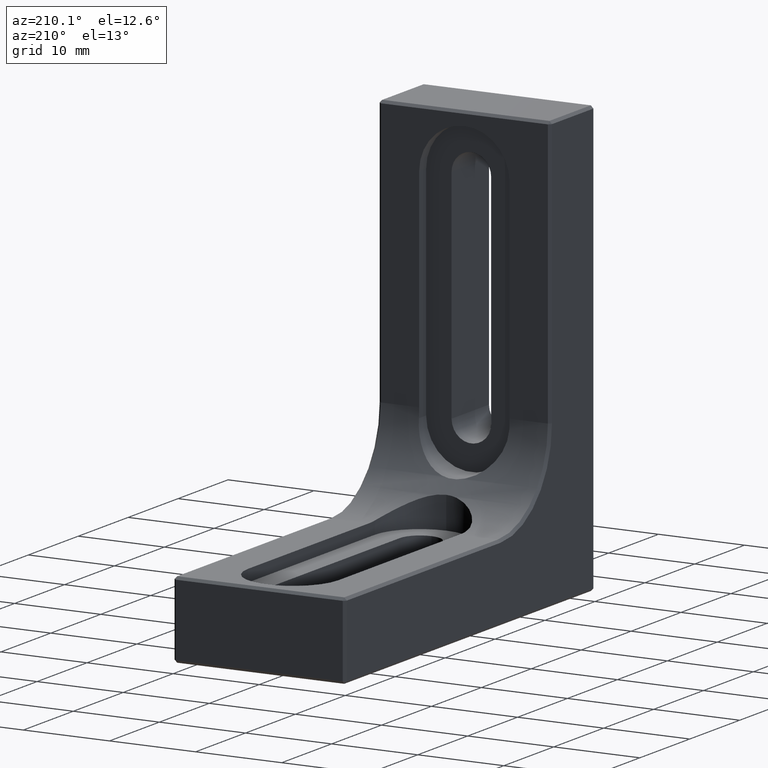
[diagram: clean part render]
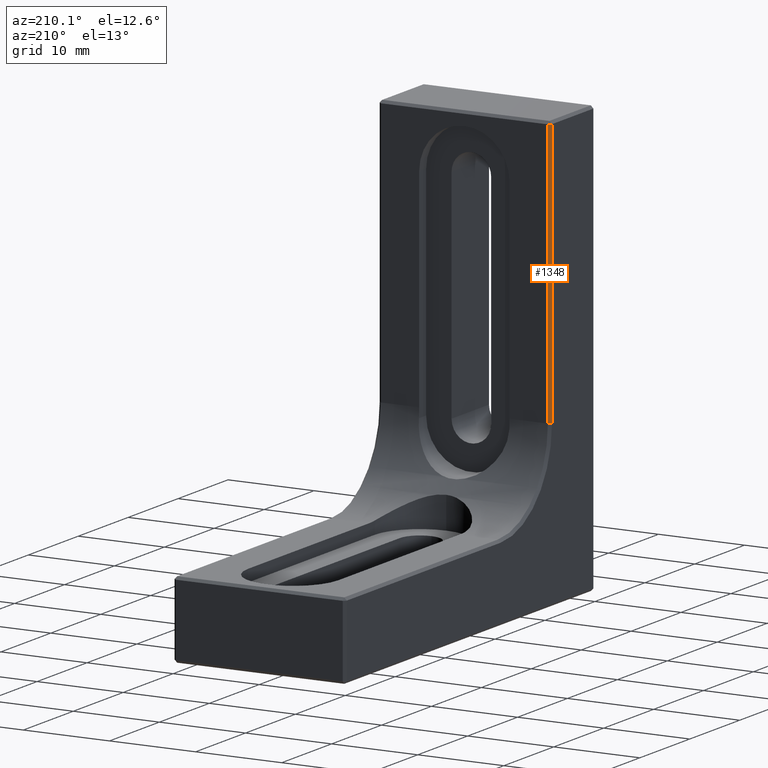
[diagram: same view with one face highlighted and labeled with its STEP entity id]
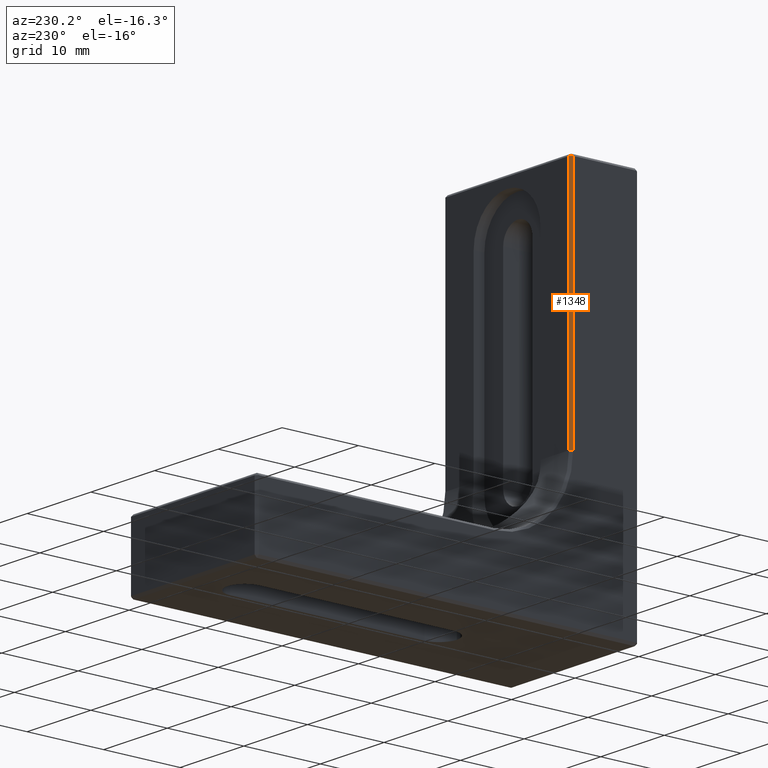
[diagram: same view with one face highlighted and labeled with its STEP entity id]
A machine part, auxiliary view. The second image highlights one B-rep face of the part: STEP entity #1348.
A second angle (auxiliary view) of the same face is appended — the face is thin or edge-on in the first view.
In plain terms, the highlighted planar face has unit normal (0.7071, -0.7071, -0).
Its self-contained STEP definition (entity closure, byte-faithful):
#25 = VECTOR ( 'NONE', #793, 1000.000000000000227 ) ;
#107 = CARTESIAN_POINT ( 'NONE',  ( -9.699999999999999289, 8.899999999999998579, 8.899999999999995026 ) ) ;
#109 = CARTESIAN_POINT ( 'NONE',  ( -9.699999999999999289, 8.899999999999996803, 18.89999999999999503 ) ) ;
#353 = CARTESIAN_POINT ( 'NONE',  ( -10.00000000000000000, 8.599999999999992539, 49.70000000000000284 ) ) ;
#470 = ORIENTED_EDGE ( 'NONE', *, *, #1345, .F. ) ;
#499 = VECTOR ( 'NONE', #1198, 1000.000000000000000 ) ;
#523 = VERTEX_POINT ( 'NONE', #554 ) ;
#554 = CARTESIAN_POINT ( 'NONE',  ( -9.699999999999999289, 8.899999999999993250, 49.69999999999999574 ) ) ;
#596 = CARTESIAN_POINT ( 'NONE',  ( -9.850000000000003197, 8.749999999999989342, 49.70000000000000284 ) ) ;
#608 = VERTEX_POINT ( 'NONE', #353 ) ;
#723 = EDGE_CURVE ( 'NONE', #608, #523, #737, .T. ) ;
#737 = LINE ( 'NONE', #596, #1633 ) ;
#789 = EDGE_LOOP ( 'NONE', ( #1568, #1116, #470, #1679 ) ) ;
#793 = DIRECTION ( 'NONE',  ( 0.7071067811865495711, 0.7071067811865454633, 0.000000000000000000 ) ) ;
#885 = LINE ( 'NONE', #1169, #499 ) ;
#905 = AXIS2_PLACEMENT_3D ( 'NONE', #107, #1514, #1233 ) ;
#915 = VERTEX_POINT ( 'NONE', #109 ) ;
#921 = VECTOR ( 'NONE', #1560, 1000.000000000000000 ) ;
#1033 = EDGE_CURVE ( 'NONE', #915, #523, #1579, .T. ) ;
#1104 = FACE_OUTER_BOUND ( 'NONE', #789, .T. ) ;
#1116 = ORIENTED_EDGE ( 'NONE', *, *, #1033, .F. ) ;
#1169 = CARTESIAN_POINT ( 'NONE',  ( -10.00000000000000000, 8.599999999999997868, 1.088950503167922201E-15 ) ) ;
#1198 = DIRECTION ( 'NONE',  ( 0.000000000000000000, 1.266221515311537557E-16, -1.000000000000000000 ) ) ;
#1205 = EDGE_CURVE ( 'NONE', #608, #1582, #885, .T. ) ;
#1233 = DIRECTION ( 'NONE',  ( 0.000000000000000000, -1.266221515311537557E-16, 1.000000000000000000 ) ) ;
#1299 = CARTESIAN_POINT ( 'NONE',  ( -10.00000000000000000, 8.599999999999996092, 18.89999999999999503 ) ) ;
#1345 = EDGE_CURVE ( 'NONE', #1582, #915, #1523, .T. ) ;
#1348 = ADVANCED_FACE ( 'NONE', ( #1104 ), #1364, .F. ) ;
#1364 = PLANE ( 'NONE',  #905 ) ;
#1374 = CARTESIAN_POINT ( 'NONE',  ( -10.00000000000000000, 8.599999999999996092, 18.89999999999999503 ) ) ;
#1514 = DIRECTION ( 'NONE',  ( 0.7071067811865467956, -0.7071067811865482389, -8.953538199610949054E-17 ) ) ;
#1523 = LINE ( 'NONE', #1374, #25 ) ;
#1560 = DIRECTION ( 'NONE',  ( 0.000000000000000000, -1.266221515311537557E-16, 1.000000000000000000 ) ) ;
#1568 = ORIENTED_EDGE ( 'NONE', *, *, #723, .T. ) ;
#1579 = LINE ( 'NONE', #1677, #921 ) ;
#1582 = VERTEX_POINT ( 'NONE', #1299 ) ;
#1633 = VECTOR ( 'NONE', #1680, 999.9999999999998863 ) ;
#1677 = CARTESIAN_POINT ( 'NONE',  ( -9.699999999999999289, 8.899999999999998579, 8.899999999999995026 ) ) ;
#1679 = ORIENTED_EDGE ( 'NONE', *, *, #1205, .F. ) ;
#1680 = DIRECTION ( 'NONE',  ( 0.7071067811865483499, 0.7071067811865467956, -1.895572621428228090E-14 ) ) ;